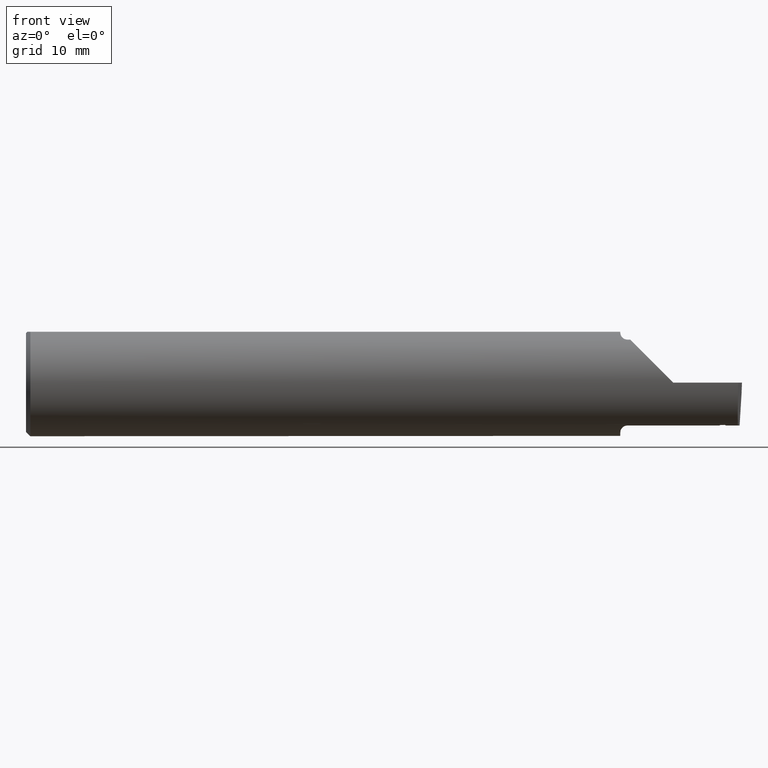
[diagram: clean part render]
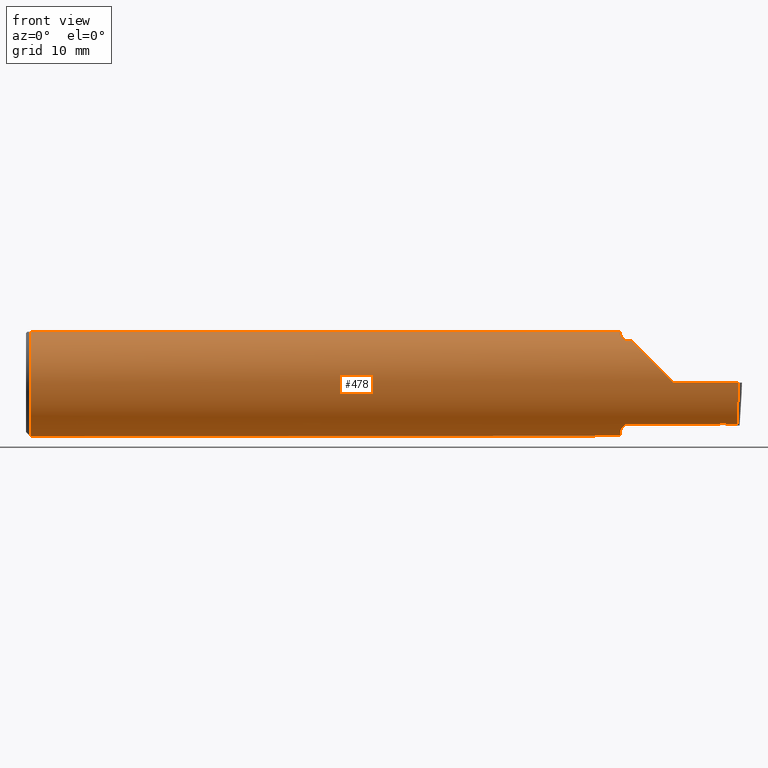
[diagram: same view with one face highlighted and labeled with its STEP entity id]
A machine part, front view. The second image highlights one B-rep face of the part: STEP entity #478.
In plain terms, the highlighted cylindrical surface (partial cylindrical patch) has radius 4.7587 mm, axis along (-1, -0, -0).
Its self-contained STEP definition (entity closure, byte-faithful):
#1 = ORIENTED_EDGE ( 'NONE', *, *, #592, .F. ) ;
#13 = EDGE_CURVE ( 'NONE', #14, #561, #942, .T. ) ;
#14 = VERTEX_POINT ( 'NONE', #480 ) ;
#19 = ORIENTED_EDGE ( 'NONE', *, *, #53, .F. ) ;
#23 = CARTESIAN_POINT ( 'NONE',  ( 2.084228130464465867, -0.1072797540790367404, -0.1536407449207395082 ) ) ;
#24 = CARTESIAN_POINT ( 'NONE',  ( 2.432595539171431565, -0.1205886845300085525, -0.1433820739707263869 ) ) ;
#26 = DIRECTION ( 'NONE',  ( 1.000000000000000000, 0.000000000000000000, 0.000000000000000000 ) ) ;
#36 = CARTESIAN_POINT ( 'NONE',  ( 2.260000000000000231, -0.1873499999999999888, 2.939152317953647352E-17 ) ) ;
#40 = CARTESIAN_POINT ( 'NONE',  ( 2.430481538961044574, -0.1204616461840352093, -0.1434888214913440374 ) ) ;
#47 =( BOUNDED_CURVE ( )  B_SPLINE_CURVE ( 3, ( #413, #567, #965, #489 ),
 .UNSPECIFIED., .F., .F. ) 
 B_SPLINE_CURVE_WITH_KNOTS ( ( 4, 4 ),
 ( 6.032366188922103412, 6.926893589830550368 ),
 .UNSPECIFIED. ) 
 CURVE ( )  GEOMETRIC_REPRESENTATION_ITEM ( )  RATIONAL_B_SPLINE_CURVE ( ( 1.000000000000000000, 0.9344226172588803170, 0.9344226172588803170, 1.000000000000000000 ) ) 
 REPRESENTATION_ITEM ( '' )  );
#48 = LINE ( 'NONE', #628, #812 ) ;
#50 = VERTEX_POINT ( 'NONE', #1027 ) ;
#53 = EDGE_CURVE ( 'NONE', #879, #626, #832, .T. ) ;
#57 = LINE ( 'NONE', #127, #423 ) ;
#58 = VERTEX_POINT ( 'NONE', #235 ) ;
#59 = LINE ( 'NONE', #383, #728 ) ;
#70 = DIRECTION ( 'NONE',  ( -1.000000000000000000, -0.000000000000000000, -0.000000000000000000 ) ) ;
#100 = EDGE_CURVE ( 'NONE', #975, #247, #835, .T. ) ;
#101 = CARTESIAN_POINT ( 'NONE',  ( 2.090551048069662077, -0.1140002044565611578, -0.1486821290834929865 ) ) ;
#103 = VERTEX_POINT ( 'NONE', #531 ) ;
#113 = ORIENTED_EDGE ( 'NONE', *, *, #13, .F. ) ;
#116 = CARTESIAN_POINT ( 'NONE',  ( 0.01499999999999999944, 0.000000000000000000, 0.000000000000000000 ) ) ;
#121 = DIRECTION ( 'NONE',  ( 0.000000000000000000, 0.000000000000000000, -1.000000000000000000 ) ) ;
#126 = CARTESIAN_POINT ( 'NONE',  ( 2.076062863587533780, -0.08334999999998812803, 0.1677879614275171183 ) ) ;
#127 = CARTESIAN_POINT ( 'NONE',  ( 2.266000000000000014, -0.1172600179964007061, 0.1461167706989303094 ) ) ;
#129 = ORIENTED_EDGE ( 'NONE', *, *, #512, .F. ) ;
#133 = DIRECTION ( 'NONE',  ( 0.000000000000000000, 0.000000000000000000, 1.000000000000000000 ) ) ;
#135 = CIRCLE ( 'NONE', #683, 0.1873499999999999888 ) ;
#138 = ORIENTED_EDGE ( 'NONE', *, *, #733, .F. ) ;
#143 = CARTESIAN_POINT ( 'NONE',  ( 2.075000000000000178, -0.06851976604679065053, 0.1743704796142198643 ) ) ;
#146 = B_SPLINE_CURVE_WITH_KNOTS ( 'NONE', 3,
 ( #369, #677, #986, #344 ),
 .UNSPECIFIED., .F., .F.,
 ( 4, 4 ),
 ( 0.001278539404338873992, 0.001694873732696220705 ),
 .UNSPECIFIED. ) ;
#153 =( BOUNDED_CURVE ( )  B_SPLINE_CURVE ( 3, ( #36, #273, #838, #999 ),
 .UNSPECIFIED., .F., .T. ) 
 B_SPLINE_CURVE_WITH_KNOTS ( ( 4, 4 ),
 ( 4.712388980384688786, 5.606916381293135743 ),
 .UNSPECIFIED. ) 
 CURVE ( )  GEOMETRIC_REPRESENTATION_ITEM ( )  RATIONAL_B_SPLINE_CURVE ( ( 1.000000000000000000, 0.9344226172588803170, 0.9344226172588803170, 1.000000000000000000 ) ) 
 REPRESENTATION_ITEM ( '' )  );
#155 = CARTESIAN_POINT ( 'NONE',  ( 0.01499999999999999944, 0.000000000000000000, -0.1873499999999999888 ) ) ;
#157 = CARTESIAN_POINT ( 'NONE',  ( 2.444191707502841648, -0.1172600179964005396, -0.1461167706989303094 ) ) ;
#158 = B_SPLINE_CURVE_WITH_KNOTS ( 'NONE', 3,
 ( #919, #773, #520, #212, #101, #424, #23, #778, #941, #788, #543, #299 ),
 .UNSPECIFIED., .F., .F.,
 ( 4, 2, 2, 2, 2, 4 ),
 ( 1.967976973658592312E-07, 0.0001599896235275545964, 0.0003197824493577432984, 0.0006393681010181202686, 0.0009589537526784971304, 0.001278539404338873992 ),
 .UNSPECIFIED. ) ;
#170 = AXIS2_PLACEMENT_3D ( 'NONE', #116, #505, #918 ) ;
#180 = ORIENTED_EDGE ( 'NONE', *, *, #913, .F. ) ;
#199 = DIRECTION ( 'NONE',  ( -1.000000000000000000, -0.000000000000000000, -0.000000000000000000 ) ) ;
#211 = EDGE_CURVE ( 'NONE', #771, #817, #158, .T. ) ;
#212 = CARTESIAN_POINT ( 'NONE',  ( 2.092163414264744503, -0.1151183835841406849, -0.1478135984872520903 ) ) ;
#213 = VERTEX_POINT ( 'NONE', #1018 ) ;
#225 = DIRECTION ( 'NONE',  ( -1.000000000000000000, -0.000000000000000000, -0.000000000000000000 ) ) ;
#234 = ORIENTED_EDGE ( 'NONE', *, *, #557, .F. ) ;
#235 = CARTESIAN_POINT ( 'NONE',  ( 0.01499999999999756042, 0.06039039658754215278, 0.1773499999999999799 ) ) ;
#241 = ORIENTED_EDGE ( 'NONE', *, *, #854, .F. ) ;
#247 = VERTEX_POINT ( 'NONE', #716 ) ;
#260 = FACE_OUTER_BOUND ( 'NONE', #388, .T. ) ;
#269 = CARTESIAN_POINT ( 'NONE',  ( 2.077158970028690099, -0.09067355718685699006, 0.1641499263364886996 ) ) ;
#273 = CARTESIAN_POINT ( 'NONE',  ( 2.202189699843949189, -0.1873500000000000443, 0.05781030015605096578 ) ) ;
#280 = CARTESIAN_POINT ( 'NONE',  ( 2.443071615181778622, -0.1190227122283912392, -0.1446875610761316489 ) ) ;
#284 = EDGE_CURVE ( 'NONE', #426, #348, #57, .T. ) ;
#287 = ORIENTED_EDGE ( 'NONE', *, *, #700, .F. ) ;
#299 = CARTESIAN_POINT ( 'NONE',  ( 2.076062863587535556, -0.08334999999999989639, -0.1677879614275112619 ) ) ;
#301 = CARTESIAN_POINT ( 'NONE',  ( 2.421107959158274259, -0.1181635923225869411, -0.1453916442042585966 ) ) ;
#313 = DIRECTION ( 'NONE',  ( 1.000000000000000000, 0.000000000000000000, 0.000000000000000000 ) ) ;
#320 = ORIENTED_EDGE ( 'NONE', *, *, #284, .F. ) ;
#325 = ORIENTED_EDGE ( 'NONE', *, *, #211, .F. ) ;
#339 = CARTESIAN_POINT ( 'NONE',  ( 2.440211079559213125, -0.1210447068979502022, -0.1429972425317855012 ) ) ;
#341 = CARTESIAN_POINT ( 'NONE',  ( 2.426253567114300846, -0.1202070058351702025, -0.1437022123785499372 ) ) ;
#344 = CARTESIAN_POINT ( 'NONE',  ( 2.075000000000000178, -0.06851976604679065053, -0.1743704796142198643 ) ) ;
#348 = VERTEX_POINT ( 'NONE', #634 ) ;
#349 = CARTESIAN_POINT ( 'NONE',  ( 2.100000000000000089, -0.1172600179964007477, 0.1461167706989302817 ) ) ;
#355 = CARTESIAN_POINT ( 'NONE',  ( 2.434709553758566791, -0.1207154407314173922, -0.1432752765449073484 ) ) ;
#361 = EDGE_CURVE ( 'NONE', #570, #58, #48, .T. ) ;
#369 = CARTESIAN_POINT ( 'NONE',  ( 2.076062863587535556, -0.08334999999999989639, -0.1677879614275112619 ) ) ;
#374 = DIRECTION ( 'NONE',  ( -1.000000000000000000, -0.000000000000000000, -0.000000000000000000 ) ) ;
#378 = CARTESIAN_POINT ( 'NONE',  ( 2.075000000000000178, -0.06851976604679065053, 0.1743704796142198643 ) ) ;
#383 = CARTESIAN_POINT ( 'NONE',  ( 0.000000000000000000, -0.06039039658753697637, 0.1773499999999999799 ) ) ;
#388 = EDGE_LOOP ( 'NONE', ( #113, #696, #889, #633, #320, #138, #19, #180, #963, #129, #707, #658, #1016, #1, #325, #287, #241, #687, #234 ) ) ;
#389 = B_SPLINE_CURVE_WITH_KNOTS ( 'NONE', 3,
 ( #992, #269, #906, #517, #764, #772, #613, #349 ),
 .UNSPECIFIED., .F., .F.,
 ( 4, 2, 2, 4 ),
 ( 0.0004561457252213464947, 0.001084815134961806095, 0.001399149839832031532, 0.001713484544702257185 ),
 .UNSPECIFIED. ) ;
#395 = DIRECTION ( 'NONE',  ( 0.000000000000000000, 0.000000000000000000, -1.000000000000000000 ) ) ;
#397 = EDGE_CURVE ( 'NONE', #14, #975, #47, .T. ) ;
#413 = CARTESIAN_POINT ( 'NONE',  ( 2.485628535317038867, -0.1172600179964007061, -0.1461167706989303094 ) ) ;
#422 = CARTESIAN_POINT ( 'NONE',  ( 2.444191707502841648, -0.1172600179964005396, -0.1461167706989303094 ) ) ;
#423 = VECTOR ( 'NONE', #552, 39.37007874015748143 ) ;
#424 = CARTESIAN_POINT ( 'NONE',  ( 2.086340974786207170, -0.1102890168945986626, -0.1514792188789464422 ) ) ;
#425 = CARTESIAN_POINT ( 'NONE',  ( 2.428367553115089894, -0.1203343260142653581, -0.1435955169310396684 ) ) ;
#426 = VERTEX_POINT ( 'NONE', #720 ) ;
#432 = CARTESIAN_POINT ( 'NONE',  ( 2.422025638076214182, -0.1199515203394592167, -0.1439154448565278244 ) ) ;
#445 = B_SPLINE_CURVE_WITH_KNOTS ( 'NONE', 3,
 ( #611, #526, #756, #355, #24, #40, #425, #341, #508, #432 ),
 .UNSPECIFIED., .F., .F.,
 ( 4, 3, 3, 4 ),
 ( 0.000000000000000000, 0.0001077215152118620318, 0.0002693038001888985200, 0.0004308860970011368940 ),
 .UNSPECIFIED. ) ;
#446 = VECTOR ( 'NONE', #1010, 39.37007874015748143 ) ;
#450 = LINE ( 'NONE', #917, #446 ) ;
#475 = CARTESIAN_POINT ( 'NONE',  ( 2.075344683557281300, -0.07855153123406181936, 0.1701716388274757685 ) ) ;
#476 = CARTESIAN_POINT ( 'NONE',  ( 0.01499999999999999944, 0.000000000000000000, 0.000000000000000000 ) ) ;
#477 = VECTOR ( 'NONE', #751, 39.37007874015748143 ) ;
#478 = ADVANCED_FACE ( 'NONE', ( #260 ), #690, .T. ) ;
#480 = CARTESIAN_POINT ( 'NONE',  ( 2.485628535317038867, -0.1172600179964007061, -0.1461167706989303094 ) ) ;
#489 = CARTESIAN_POINT ( 'NONE',  ( 2.487009473749072441, -0.1873499999999999055, 0.000000000000000000 ) ) ;
#505 = DIRECTION ( 'NONE',  ( -1.000000000000000000, -0.000000000000000000, -0.000000000000000000 ) ) ;
#508 = CARTESIAN_POINT ( 'NONE',  ( 2.424139595439235073, -0.1200794038298985400, -0.1438088557470698359 ) ) ;
#512 = EDGE_CURVE ( 'NONE', #1006, #590, #940, .T. ) ;
#517 = CARTESIAN_POINT ( 'NONE',  ( 2.084249444250374061, -0.1073163636891284051, 0.1536158790136666619 ) ) ;
#520 = CARTESIAN_POINT ( 'NONE',  ( 2.095804171164107110, -0.1167508198888949356, -0.1465276362740037808 ) ) ;
#526 = CARTESIAN_POINT ( 'NONE',  ( 2.437528246080943095, -0.1208843235918136555, -0.1431328578062397439 ) ) ;
#531 = CARTESIAN_POINT ( 'NONE',  ( 2.438937601851397297, -0.1209685768375081683, -0.1430616158090907419 ) ) ;
#532 = AXIS2_PLACEMENT_3D ( 'NONE', #476, #70, #133 ) ;
#535 = CARTESIAN_POINT ( 'NONE',  ( 0.01499999999999999944, -0.06039039658753697637, 0.1773499999999999799 ) ) ;
#542 = DIRECTION ( 'NONE',  ( 1.000000000000000000, 0.000000000000000000, 0.000000000000000000 ) ) ;
#543 = CARTESIAN_POINT ( 'NONE',  ( 2.076612951569643428, -0.08702537370779858672, -0.1659621904011591986 ) ) ;
#552 = DIRECTION ( 'NONE',  ( 1.000000000000000000, 0.000000000000000000, 0.000000000000000000 ) ) ;
#554 = CARTESIAN_POINT ( 'NONE',  ( 2.420647357912071751, -0.1172600179964005812, -0.1461167706989303650 ) ) ;
#557 = EDGE_CURVE ( 'NONE', #561, #103, #960, .T. ) ;
#561 = VERTEX_POINT ( 'NONE', #157 ) ;
#567 = CARTESIAN_POINT ( 'NONE',  ( 2.485002117657001186, -0.1623470442677541481, -0.1099340280425338545 ) ) ;
#569 = CARTESIAN_POINT ( 'NONE',  ( 2.487009473749072441, -0.1873499999999999055, 0.000000000000000000 ) ) ;
#570 = VERTEX_POINT ( 'NONE', #818 ) ;
#579 = AXIS2_PLACEMENT_3D ( 'NONE', #587, #199, #834 ) ;
#587 = CARTESIAN_POINT ( 'NONE',  ( 0.000000000000000000, 0.000000000000000000, 0.000000000000000000 ) ) ;
#590 = VERTEX_POINT ( 'NONE', #535 ) ;
#592 = EDGE_CURVE ( 'NONE', #817, #50, #146, .T. ) ;
#593 = CARTESIAN_POINT ( 'NONE',  ( 2.438937601851397297, -0.1209685768375081683, -0.1430616158090907419 ) ) ;
#600 = CIRCLE ( 'NONE', #532, 0.1873499999999999888 ) ;
#605 = CARTESIAN_POINT ( 'NONE',  ( 2.075000000000000178, 0.000000000000000000, 0.000000000000000000 ) ) ;
#611 = CARTESIAN_POINT ( 'NONE',  ( 2.438937601851397297, -0.1209685768375081683, -0.1430616158090907419 ) ) ;
#613 = CARTESIAN_POINT ( 'NONE',  ( 2.095724556588812515, -0.1172600179964061184, 0.1461167706989260351 ) ) ;
#615 = CARTESIAN_POINT ( 'NONE',  ( 3.749399456654646757E-32, -0.1873499999999999888, 3.061616997868384127E-16 ) ) ;
#621 = CARTESIAN_POINT ( 'NONE',  ( 2.076062863587533780, -0.08334999999998812803, 0.1677879614275171183 ) ) ;
#626 = VERTEX_POINT ( 'NONE', #126 ) ;
#627 = CARTESIAN_POINT ( 'NONE',  ( 2.421567443531847719, -0.1190608260629894832, -0.1446578261396952170 ) ) ;
#628 = CARTESIAN_POINT ( 'NONE',  ( 0.000000000000000000, 0.06039039658753697637, 0.1773499999999999799 ) ) ;
#630 = CIRCLE ( 'NONE', #845, 0.1873499999999999888 ) ;
#633 = ORIENTED_EDGE ( 'NONE', *, *, #640, .T. ) ;
#634 = CARTESIAN_POINT ( 'NONE',  ( 2.113883229301070532, -0.1172600179964009143, 0.1461167706989301707 ) ) ;
#637 = CARTESIAN_POINT ( 'NONE',  ( 2.074999999999999734, -0.07360907839729495528, 0.1723706084642000758 ) ) ;
#638 = CARTESIAN_POINT ( 'NONE',  ( 2.100000000000000089, -0.1172600179964006922, -0.1461167706989303094 ) ) ;
#640 = EDGE_CURVE ( 'NONE', #247, #348, #153, .T. ) ;
#658 = ORIENTED_EDGE ( 'NONE', *, *, #361, .F. ) ;
#664 = EDGE_CURVE ( 'NONE', #50, #570, #630, .T. ) ;
#677 = CARTESIAN_POINT ( 'NONE',  ( 2.075346246588685162, -0.07856197451716399882, -0.1701664510438046229 ) ) ;
#683 = AXIS2_PLACEMENT_3D ( 'NONE', #787, #542, #395 ) ;
#687 = ORIENTED_EDGE ( 'NONE', *, *, #1035, .F. ) ;
#690 = CYLINDRICAL_SURFACE ( 'NONE', #579, 0.1873499999999999888 ) ;
#696 = ORIENTED_EDGE ( 'NONE', *, *, #397, .T. ) ;
#700 = EDGE_CURVE ( 'NONE', #213, #771, #450, .T. ) ;
#707 = ORIENTED_EDGE ( 'NONE', *, *, #911, .F. ) ;
#716 = CARTESIAN_POINT ( 'NONE',  ( 2.260000000000000231, -0.1873499999999999888, 2.939152317953647352E-17 ) ) ;
#720 = CARTESIAN_POINT ( 'NONE',  ( 2.100000000000000089, -0.1172600179964007477, 0.1461167706989302817 ) ) ;
#728 = VECTOR ( 'NONE', #313, 39.37007874015748143 ) ;
#733 = EDGE_CURVE ( 'NONE', #626, #426, #389, .T. ) ;
#751 = DIRECTION ( 'NONE',  ( -1.000000000000000000, -0.000000000000000000, -0.000000000000000000 ) ) ;
#756 = CARTESIAN_POINT ( 'NONE',  ( 2.436118896717770710, -0.1207999448597607134, -0.1432040782660236045 ) ) ;
#764 = CARTESIAN_POINT ( 'NONE',  ( 2.086319809340846820, -0.1102629523538394968, 0.1514982751257170634 ) ) ;
#771 = VERTEX_POINT ( 'NONE', #638 ) ;
#772 = CARTESIAN_POINT ( 'NONE',  ( 2.091924463282975211, -0.1152182125075826291, 0.1477647100440766526 ) ) ;
#773 = CARTESIAN_POINT ( 'NONE',  ( 2.097868998470238111, -0.1172600179964006645, -0.1461167706989303372 ) ) ;
#778 = CARTESIAN_POINT ( 'NONE',  ( 2.080806801261507299, -0.1009700360460131924, -0.1578590382459146846 ) ) ;
#787 = CARTESIAN_POINT ( 'NONE',  ( 2.075000000000000178, 0.000000000000000000, 0.000000000000000000 ) ) ;
#788 = CARTESIAN_POINT ( 'NONE',  ( 2.077380638915944822, -0.09060738690120609395, -0.1640321561807270567 ) ) ;
#792 = VERTEX_POINT ( 'NONE', #874 ) ;
#796 = VECTOR ( 'NONE', #374, 39.37007874015748143 ) ;
#812 = VECTOR ( 'NONE', #225, 39.37007874015748143 ) ;
#817 = VERTEX_POINT ( 'NONE', #869 ) ;
#818 = CARTESIAN_POINT ( 'NONE',  ( 2.075000000000000178, 0.06039039658754216666, 0.1773499999999999799 ) ) ;
#824 = CARTESIAN_POINT ( 'NONE',  ( 2.443688705465293598, -0.1181608300328332306, -0.1453938609665416382 ) ) ;
#832 = B_SPLINE_CURVE_WITH_KNOTS ( 'NONE', 3,
 ( #378, #637, #475, #621 ),
 .UNSPECIFIED., .F., .F.,
 ( 4, 4 ),
 ( 4.423516731080786679E-05, 0.0004561457252213465489 ),
 .UNSPECIFIED. ) ;
#834 = DIRECTION ( 'NONE',  ( 0.000000000000000000, 0.000000000000000000, 1.000000000000000000 ) ) ;
#835 = LINE ( 'NONE', #615, #477 ) ;
#838 = CARTESIAN_POINT ( 'NONE',  ( 2.150065971957467070, -0.1623470442677542591, 0.1099340280425335908 ) ) ;
#845 = AXIS2_PLACEMENT_3D ( 'NONE', #605, #26, #121 ) ;
#850 = B_SPLINE_CURVE_WITH_KNOTS ( 'NONE', 3,
 ( #1029, #627, #301, #554 ),
 .UNSPECIFIED., .F., .F.,
 ( 4, 4 ),
 ( 0.000000000000000000, 9.500012044866924582E-05 ),
 .UNSPECIFIED. ) ;
#854 = EDGE_CURVE ( 'NONE', #901, #213, #850, .T. ) ;
#869 = CARTESIAN_POINT ( 'NONE',  ( 2.076062863587535556, -0.08334999999999989639, -0.1677879614275112619 ) ) ;
#874 = CARTESIAN_POINT ( 'NONE',  ( 2.075000000000000178, -0.06039039658753699025, 0.1773499999999999799 ) ) ;
#879 = VERTEX_POINT ( 'NONE', #143 ) ;
#889 = ORIENTED_EDGE ( 'NONE', *, *, #100, .T. ) ;
#901 = VERTEX_POINT ( 'NONE', #943 ) ;
#906 = CARTESIAN_POINT ( 'NONE',  ( 2.079075010165367665, -0.09778159395695855405, 0.1599914159748311027 ) ) ;
#911 = EDGE_CURVE ( 'NONE', #58, #1006, #600, .T. ) ;
#913 = EDGE_CURVE ( 'NONE', #792, #879, #135, .T. ) ;
#917 = CARTESIAN_POINT ( 'NONE',  ( 2.266000000000000014, -0.1172600179964007061, -0.1461167706989303094 ) ) ;
#918 = DIRECTION ( 'NONE',  ( 0.000000000000000000, 0.000000000000000000, 1.000000000000000000 ) ) ;
#919 = CARTESIAN_POINT ( 'NONE',  ( 2.100000000000000089, -0.1172600179964006922, -0.1461167706989303094 ) ) ;
#923 = EDGE_CURVE ( 'NONE', #590, #792, #59, .T. ) ;
#940 = CIRCLE ( 'NONE', #170, 0.1873499999999999888 ) ;
#941 = CARTESIAN_POINT ( 'NONE',  ( 2.079475235432780789, -0.09757364237049405420, -0.1599863467203317402 ) ) ;
#942 = LINE ( 'NONE', #947, #796 ) ;
#943 = CARTESIAN_POINT ( 'NONE',  ( 2.422025638076214182, -0.1199515203394592167, -0.1439154448565278244 ) ) ;
#947 = CARTESIAN_POINT ( 'NONE',  ( 2.266000000000000014, -0.1172600179964007061, -0.1461167706989303094 ) ) ;
#960 = B_SPLINE_CURVE_WITH_KNOTS ( 'NONE', 3,
 ( #422, #824, #280, #977, #339, #593 ),
 .UNSPECIFIED., .F., .F.,
 ( 4, 2, 4 ),
 ( 0.0002908299335268915752, 0.0003847768622424025623, 0.0004787237909579135494 ),
 .UNSPECIFIED. ) ;
#963 = ORIENTED_EDGE ( 'NONE', *, *, #923, .F. ) ;
#965 = CARTESIAN_POINT ( 'NONE',  ( 2.485494735025390867, -0.1873500000000000443, -0.05781030015605120170 ) ) ;
#975 = VERTEX_POINT ( 'NONE', #569 ) ;
#977 = CARTESIAN_POINT ( 'NONE',  ( 2.441381938566095311, -0.1204606180674028665, -0.1434926334387276181 ) ) ;
#986 = CARTESIAN_POINT ( 'NONE',  ( 2.075000000000000178, -0.07359296612170562746, -0.1723769398647691520 ) ) ;
#992 = CARTESIAN_POINT ( 'NONE',  ( 2.076062863587533780, -0.08334999999998812803, 0.1677879614275171183 ) ) ;
#999 = CARTESIAN_POINT ( 'NONE',  ( 2.113883229301070532, -0.1172600179964009143, 0.1461167706989301707 ) ) ;
#1006 = VERTEX_POINT ( 'NONE', #155 ) ;
#1010 = DIRECTION ( 'NONE',  ( -1.000000000000000000, -0.000000000000000000, -0.000000000000000000 ) ) ;
#1016 = ORIENTED_EDGE ( 'NONE', *, *, #664, .F. ) ;
#1018 = CARTESIAN_POINT ( 'NONE',  ( 2.420647357912071751, -0.1172600179964005812, -0.1461167706989303650 ) ) ;
#1027 = CARTESIAN_POINT ( 'NONE',  ( 2.075000000000000178, -0.06851976604679065053, -0.1743704796142198643 ) ) ;
#1029 = CARTESIAN_POINT ( 'NONE',  ( 2.422025638076214182, -0.1199515203394592167, -0.1439154448565278244 ) ) ;
#1035 = EDGE_CURVE ( 'NONE', #103, #901, #445, .T. ) ;